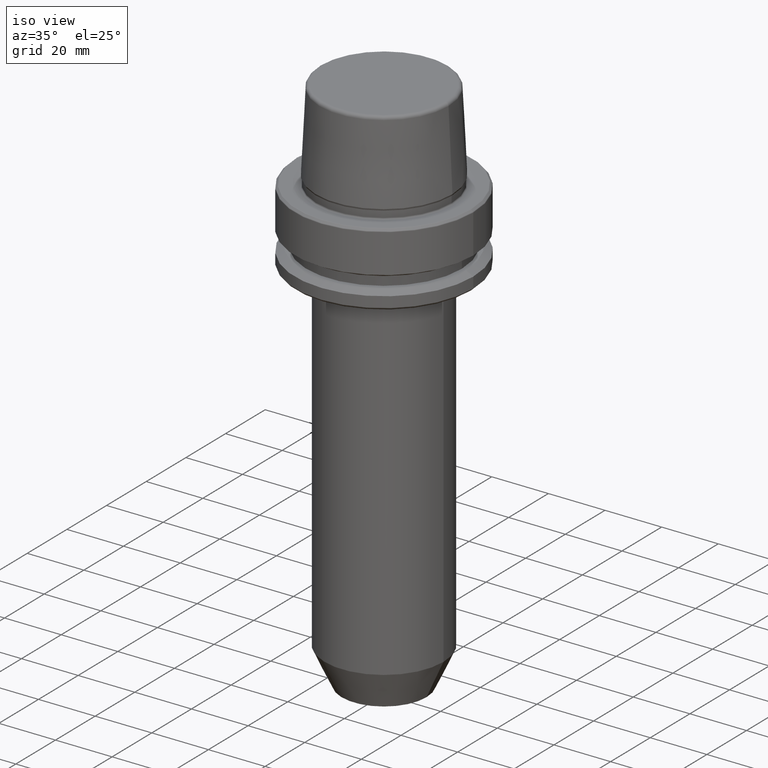
[diagram: clean part render]
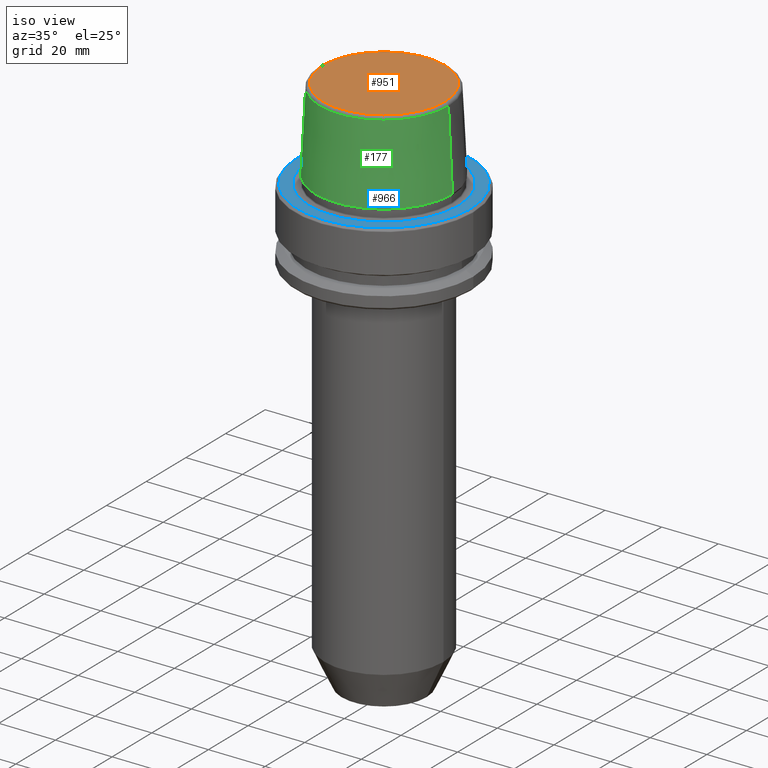
[diagram: same view with three faces highlighted in distinct colors, each labeled with its STEP entity id]
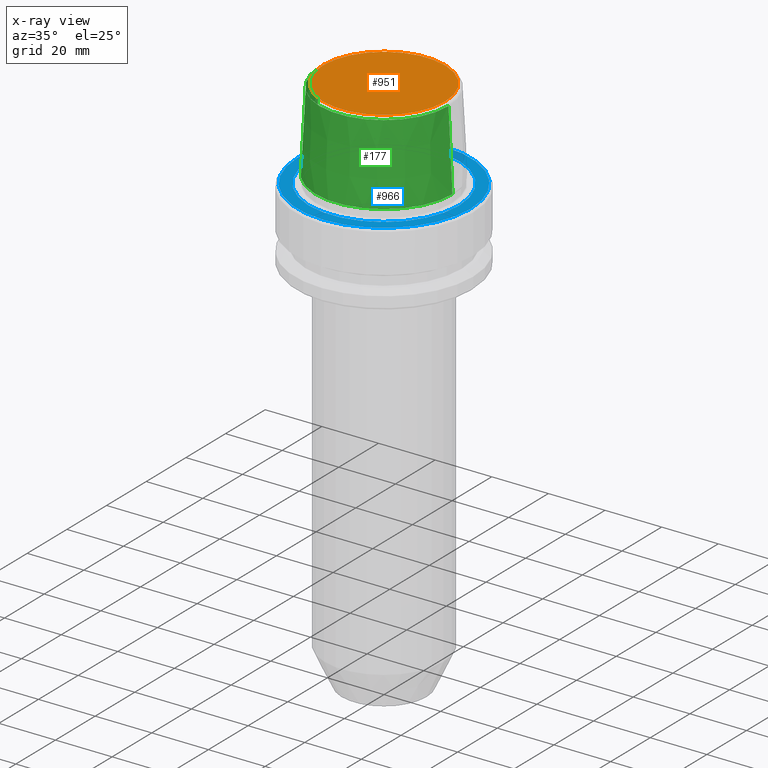
[diagram: x-ray of the same camera — body ghosted, the three highlighted faces saturated]
A machine part, iso view with three faces highlighted in distinct colors.
The next image is the same camera in x-ray (body ghosted, the three faces saturated) — at least one of them is partly hidden behind the body in this view.
Their STEP definitions:

[orange] entity #951 — the highlighted planar face has unit normal (0, 0, -1).
#47 = DIRECTION ( 'NONE',  ( -0.0000000000000000000, -0.0000000000000000000, 1.000000000000000000 ) ) ;
#57 = CARTESIAN_POINT ( 'NONE',  ( 0.0000000000000000000, 0.0000000000000000000, 31.89999999999999900 ) ) ;
#73 = CIRCLE ( 'NONE', #1078, 21.58108272732117100 ) ;
#107 = EDGE_LOOP ( 'NONE', ( #1179, #477 ) ) ;
#179 = DIRECTION ( 'NONE',  ( 1.000000000000000000, 0.0000000000000000000, 0.0000000000000000000 ) ) ;
#186 = CIRCLE ( 'NONE', #851, 21.58108272732117100 ) ;
#382 = DIRECTION ( 'NONE',  ( 0.0000000000000000000, 0.0000000000000000000, -1.000000000000000000 ) ) ;
#459 = CARTESIAN_POINT ( 'NONE',  ( 0.0000000000000000000, 0.0000000000000000000, 31.89999999999999900 ) ) ;
#477 = ORIENTED_EDGE ( 'NONE', *, *, #645, .T. ) ;
#636 = DIRECTION ( 'NONE',  ( -1.000000000000000000, 0.0000000000000000000, -0.0000000000000000000 ) ) ;
#645 = EDGE_CURVE ( 'NONE', #795, #1126, #73, .T. ) ;
#656 = CARTESIAN_POINT ( 'NONE',  ( 0.0000000000000000000, 0.0000000000000000000, 31.89999999999999900 ) ) ;
#795 = VERTEX_POINT ( 'NONE', #902 ) ;
#851 = AXIS2_PLACEMENT_3D ( 'NONE', #656, #47, #179 ) ;
#878 = CARTESIAN_POINT ( 'NONE',  ( 21.58108272732117100, 0.0000000000000000000, 31.89999999999999900 ) ) ;
#902 = CARTESIAN_POINT ( 'NONE',  ( -21.58108272732117100, 2.716307157494421400E-015, 31.89999999999999900 ) ) ;
#931 = EDGE_CURVE ( 'NONE', #1126, #795, #186, .T. ) ;
#951 = ADVANCED_FACE ( 'NONE', ( #1200 ), #1120, .F. ) ;
#1046 = DIRECTION ( 'NONE',  ( -0.0000000000000000000, -0.0000000000000000000, 1.000000000000000000 ) ) ;
#1078 = AXIS2_PLACEMENT_3D ( 'NONE', #459, #1046, #1231 ) ;
#1120 = PLANE ( 'NONE',  #1191 ) ;
#1126 = VERTEX_POINT ( 'NONE', #878 ) ;
#1179 = ORIENTED_EDGE ( 'NONE', *, *, #931, .T. ) ;
#1191 = AXIS2_PLACEMENT_3D ( 'NONE', #57, #382, #636 ) ;
#1200 = FACE_OUTER_BOUND ( 'NONE', #107, .T. ) ;
#1231 = DIRECTION ( 'NONE',  ( 1.000000000000000000, 0.0000000000000000000, 0.0000000000000000000 ) ) ;

[blue] entity #966 — the highlighted planar face has unit normal (0, 0, -1).
#15 = CARTESIAN_POINT ( 'NONE',  ( 0.0000000000000000000, 0.0000000000000000000, 0.0000000000000000000 ) ) ;
#16 = ORIENTED_EDGE ( 'NONE', *, *, #113, .F. ) ;
#90 = CIRCLE ( 'NONE', #993, 26.52499999999999900 ) ;
#113 = EDGE_CURVE ( 'NONE', #326, #368, #862, .T. ) ;
#139 = ORIENTED_EDGE ( 'NONE', *, *, #1106, .T. ) ;
#143 = DIRECTION ( 'NONE',  ( -0.0000000000000000000, -0.0000000000000000000, 1.000000000000000000 ) ) ;
#169 = DIRECTION ( 'NONE',  ( -1.000000000000000000, 0.0000000000000000000, -0.0000000000000000000 ) ) ;
#181 = AXIS2_PLACEMENT_3D ( 'NONE', #802, #1160, #169 ) ;
#214 = EDGE_CURVE ( 'NONE', #368, #326, #90, .T. ) ;
#221 = CARTESIAN_POINT ( 'NONE',  ( -26.52499999999999900, 3.248375634738354300E-015, 0.0000000000000000000 ) ) ;
#242 = DIRECTION ( 'NONE',  ( -0.0000000000000000000, -0.0000000000000000000, 1.000000000000000000 ) ) ;
#249 = DIRECTION ( 'NONE',  ( -0.0000000000000000000, -0.0000000000000000000, 1.000000000000000000 ) ) ;
#326 = VERTEX_POINT ( 'NONE', #1053 ) ;
#351 = CARTESIAN_POINT ( 'NONE',  ( 0.0000000000000000000, 0.0000000000000000000, 0.0000000000000000000 ) ) ;
#366 = CARTESIAN_POINT ( 'NONE',  ( 30.53431457505076100, 0.0000000000000000000, 0.0000000000000000000 ) ) ;
#368 = VERTEX_POINT ( 'NONE', #221 ) ;
#404 = EDGE_LOOP ( 'NONE', ( #139, #884 ) ) ;
#442 = AXIS2_PLACEMENT_3D ( 'NONE', #351, #242, #1072 ) ;
#460 = DIRECTION ( 'NONE',  ( -0.0000000000000000000, -0.0000000000000000000, 1.000000000000000000 ) ) ;
#609 = CARTESIAN_POINT ( 'NONE',  ( 0.0000000000000000000, 0.0000000000000000000, 0.0000000000000000000 ) ) ;
#667 = CARTESIAN_POINT ( 'NONE',  ( 0.0000000000000000000, 0.0000000000000000000, 0.0000000000000000000 ) ) ;
#670 = CIRCLE ( 'NONE', #1101, 30.53431457505076100 ) ;
#684 = DIRECTION ( 'NONE',  ( 1.000000000000000000, 0.0000000000000000000, 0.0000000000000000000 ) ) ;
#686 = CIRCLE ( 'NONE', #1021, 30.53431457505076100 ) ;
#693 = ORIENTED_EDGE ( 'NONE', *, *, #214, .F. ) ;
#741 = PLANE ( 'NONE',  #181 ) ;
#802 = CARTESIAN_POINT ( 'NONE',  ( 0.0000000000000000000, 26.52499999999999900, -1.111307226797642000E-015 ) ) ;
#821 = DIRECTION ( 'NONE',  ( 1.000000000000000000, 0.0000000000000000000, 0.0000000000000000000 ) ) ;
#828 = EDGE_LOOP ( 'NONE', ( #16, #693 ) ) ;
#862 = CIRCLE ( 'NONE', #442, 26.52499999999999900 ) ;
#884 = ORIENTED_EDGE ( 'NONE', *, *, #1129, .T. ) ;
#903 = VERTEX_POINT ( 'NONE', #366 ) ;
#957 = FACE_OUTER_BOUND ( 'NONE', #404, .T. ) ;
#966 = ADVANCED_FACE ( 'NONE', ( #1218, #957 ), #741, .F. ) ;
#993 = AXIS2_PLACEMENT_3D ( 'NONE', #609, #249, #821 ) ;
#1021 = AXIS2_PLACEMENT_3D ( 'NONE', #667, #460, #684 ) ;
#1053 = CARTESIAN_POINT ( 'NONE',  ( 26.52499999999999900, 0.0000000000000000000, 0.0000000000000000000 ) ) ;
#1072 = DIRECTION ( 'NONE',  ( 1.000000000000000000, 0.0000000000000000000, 0.0000000000000000000 ) ) ;
#1087 = VERTEX_POINT ( 'NONE', #1163 ) ;
#1101 = AXIS2_PLACEMENT_3D ( 'NONE', #15, #143, #1156 ) ;
#1106 = EDGE_CURVE ( 'NONE', #903, #1087, #686, .T. ) ;
#1129 = EDGE_CURVE ( 'NONE', #1087, #903, #670, .T. ) ;
#1156 = DIRECTION ( 'NONE',  ( 1.000000000000000000, 0.0000000000000000000, 0.0000000000000000000 ) ) ;
#1160 = DIRECTION ( 'NONE',  ( 0.0000000000000000000, 0.0000000000000000000, -1.000000000000000000 ) ) ;
#1163 = CARTESIAN_POINT ( 'NONE',  ( -30.53431457505076100, 3.756694181974138600E-015, 0.0000000000000000000 ) ) ;
#1218 = FACE_BOUND ( 'NONE', #828, .T. ) ;

[green] entity #177 — the highlighted conical surface has half-angle 2.868 deg.
#23 = VERTEX_POINT ( 'NONE', #30 ) ;
#26 = CARTESIAN_POINT ( 'NONE',  ( 0.0000000000000000000, 0.0000000000000000000, 3.000000000000002700 ) ) ;
#30 = CARTESIAN_POINT ( 'NONE',  ( -22.77957961851797100, 0.0000000000000000000, 30.76004333261571900 ) ) ;
#74 = CARTESIAN_POINT ( 'NONE',  ( 22.77957961851797100, 2.874852597157249900E-015, 30.76004333261571900 ) ) ;
#80 = EDGE_CURVE ( 'NONE', #611, #955, #646, .T. ) ;
#106 = CARTESIAN_POINT ( 'NONE',  ( 24.17032625081241900, 0.0000000000000000000, 3.000000000000002700 ) ) ;
#122 = DIRECTION ( 'NONE',  ( 1.000000000000000000, 0.0000000000000000000, 0.0000000000000000000 ) ) ;
#155 = LINE ( 'NONE', #1039, #796 ) ;
#177 = ADVANCED_FACE ( 'NONE', ( #348 ), #791, .T. ) ;
#185 = EDGE_CURVE ( 'NONE', #23, #611, #1070, .T. ) ;
#188 = AXIS2_PLACEMENT_3D ( 'NONE', #26, #689, #122 ) ;
#215 = DIRECTION ( 'NONE',  ( 1.000000000000000000, 0.0000000000000000000, 0.0000000000000000000 ) ) ;
#228 = ORIENTED_EDGE ( 'NONE', *, *, #185, .T. ) ;
#266 = DIRECTION ( 'NONE',  ( -0.05003611051310812000, 0.0000000000000000000, -0.9987474093306675200 ) ) ;
#322 = CARTESIAN_POINT ( 'NONE',  ( -24.17032625081241900, 0.0000000000000000000, 3.000000000000002700 ) ) ;
#332 = CIRCLE ( 'NONE', #692, 22.77957961851797100 ) ;
#348 = FACE_OUTER_BOUND ( 'NONE', #456, .T. ) ;
#389 = ORIENTED_EDGE ( 'NONE', *, *, #80, .T. ) ;
#393 = CARTESIAN_POINT ( 'NONE',  ( 0.0000000000000000000, 0.0000000000000000000, 30.76004333261571900 ) ) ;
#413 = EDGE_CURVE ( 'NONE', #23, #700, #332, .T. ) ;
#456 = EDGE_LOOP ( 'NONE', ( #562, #1089, #228, #389 ) ) ;
#480 = CARTESIAN_POINT ( 'NONE',  ( -24.17032625081241900, 2.960011267740467600E-015, 3.000000000000002700 ) ) ;
#562 = ORIENTED_EDGE ( 'NONE', *, *, #987, .F. ) ;
#611 = VERTEX_POINT ( 'NONE', #480 ) ;
#646 = CIRCLE ( 'NONE', #188, 24.17032625081241900 ) ;
#689 = DIRECTION ( 'NONE',  ( -0.0000000000000000000, -0.0000000000000000000, 1.000000000000000000 ) ) ;
#692 = AXIS2_PLACEMENT_3D ( 'NONE', #393, #789, #215 ) ;
#700 = VERTEX_POINT ( 'NONE', #74 ) ;
#739 = VECTOR ( 'NONE', #266, 1000.000000000000200 ) ;
#753 = AXIS2_PLACEMENT_3D ( 'NONE', #1008, #1219, #1254 ) ;
#761 = DIRECTION ( 'NONE',  ( 0.05003611051310812000, 6.127656258166108900E-018, -0.9987474093306675200 ) ) ;
#789 = DIRECTION ( 'NONE',  ( -0.0000000000000000000, -0.0000000000000000000, 1.000000000000000000 ) ) ;
#791 = CONICAL_SURFACE ( 'NONE', #753, 24.17032625081241900, 0.05005701257456005000 ) ;
#796 = VECTOR ( 'NONE', #761, 1000.000000000000200 ) ;
#955 = VERTEX_POINT ( 'NONE', #106 ) ;
#987 = EDGE_CURVE ( 'NONE', #700, #955, #155, .T. ) ;
#1008 = CARTESIAN_POINT ( 'NONE',  ( 0.0000000000000000000, 0.0000000000000000000, 3.000000000000002700 ) ) ;
#1039 = CARTESIAN_POINT ( 'NONE',  ( 24.17032625081241900, 2.960011267740467600E-015, 3.000000000000002700 ) ) ;
#1070 = LINE ( 'NONE', #322, #739 ) ;
#1089 = ORIENTED_EDGE ( 'NONE', *, *, #413, .F. ) ;
#1219 = DIRECTION ( 'NONE',  ( 0.0000000000000000000, 0.0000000000000000000, -1.000000000000000000 ) ) ;
#1254 = DIRECTION ( 'NONE',  ( -1.000000000000000000, 0.0000000000000000000, 0.0000000000000000000 ) ) ;